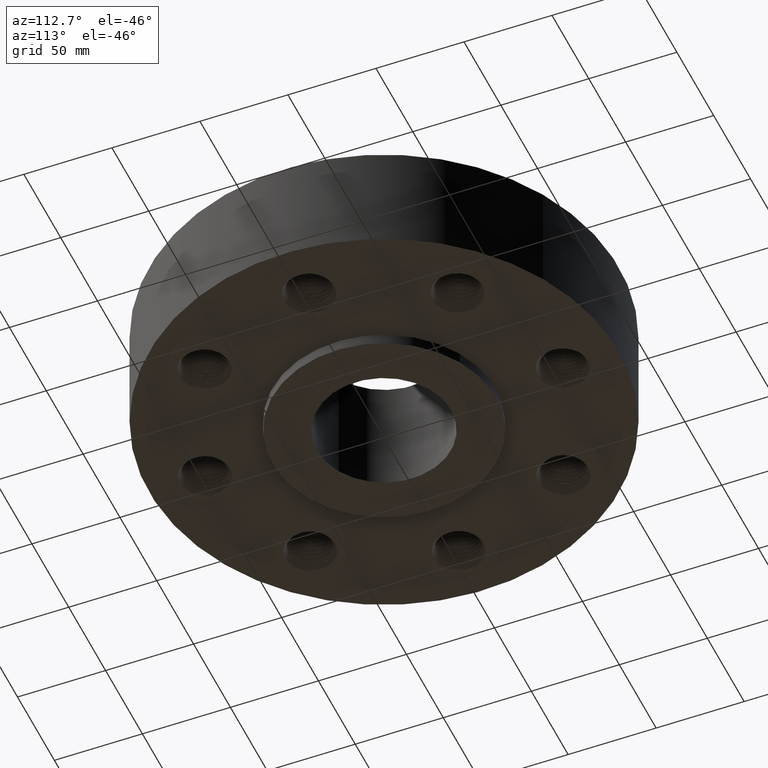
[diagram: clean part render]
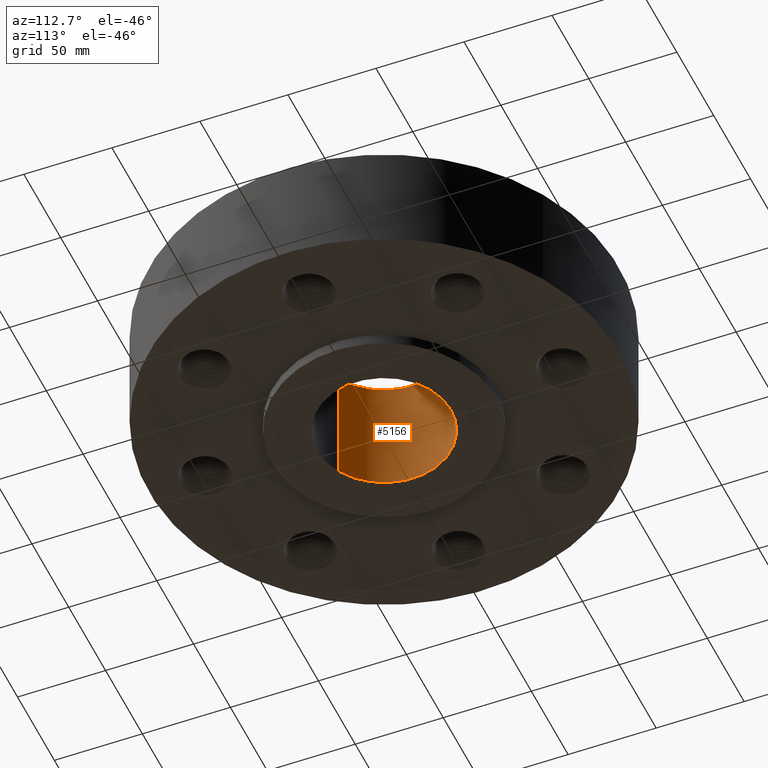
[diagram: same view with one face highlighted and labeled with its STEP entity id]
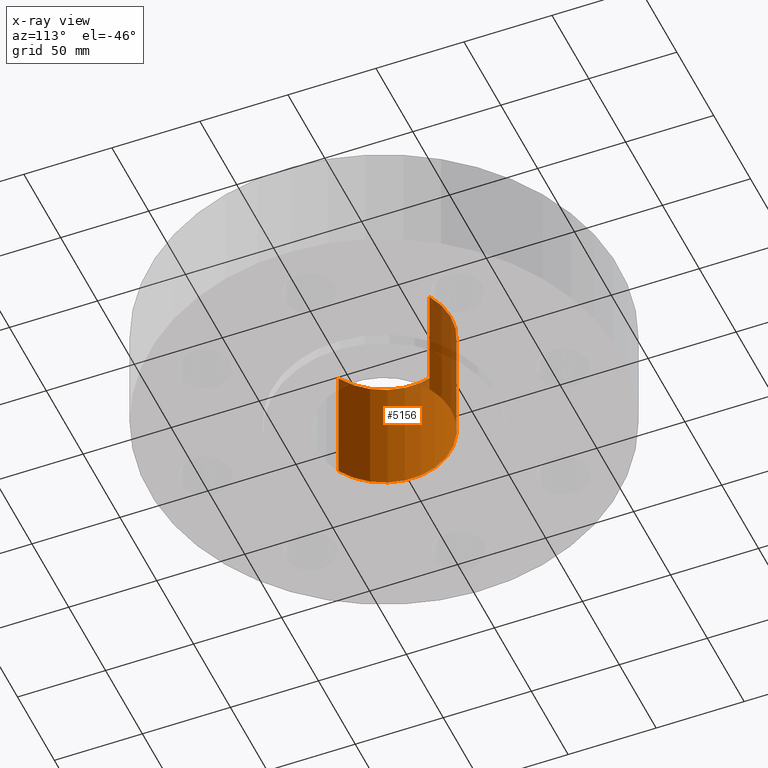
[diagram: x-ray of the same camera — body ghosted, the highlighted face saturated]
A machine part, auxiliary view. The second image highlights one B-rep face of the part: STEP entity #5156.
The next image is the same camera in x-ray: the body ghosted, the highlighted face saturated — about 12% of this face is hidden behind the body in this view.
In plain terms, the highlighted cylindrical surface (partial cylindrical patch) has radius 38.1 mm, axis along (0, 0, -1).
Its self-contained STEP definition (entity closure, byte-faithful):
#5106=AXIS2_PLACEMENT_3D('Circle Axis2P3D',#5104,#5105,$) ;
#5117=AXIS2_PLACEMENT_3D('Cylinder Axis2P3D',#5114,#5115,#5116) ;
#5147=AXIS2_PLACEMENT_3D('Circle Axis2P3D',#5145,#5146,$) ;
#5099=CARTESIAN_POINT('Vertex',(0.719138307909,1.31637384284,-0.250000000001)) ;
#5101=CARTESIAN_POINT('Vertex',(-0.719138307909,-1.31637384284,-0.250000000001)) ;
#5104=CARTESIAN_POINT('Axis2P3D Location',(0.,0.,-0.250000000001)) ;
#5114=CARTESIAN_POINT('Axis2P3D Location',(0.,0.,1.125)) ;
#5123=CARTESIAN_POINT('Vertex',(0.719138307909,1.31637384284,2.50000000001)) ;
#5125=CARTESIAN_POINT('Vertex',(-0.719138307909,-1.31637384284,2.50000000001)) ;
#5128=CARTESIAN_POINT('Line Origine',(0.719138307909,1.31637384284,1.125)) ;
#5133=CARTESIAN_POINT('Line Origine',(-0.719138307909,-1.31637384284,1.125)) ;
#5145=CARTESIAN_POINT('Axis2P3D Location',(0.,0.,2.50000000001)) ;
#5105=DIRECTION('Axis2P3D Direction',(0.,0.,-0.0393700787402)) ;
#5115=DIRECTION('Axis2P3D Direction',(0.,0.,-0.0393700787402)) ;
#5116=DIRECTION('Axis2P3D XDirection',(-0.0188750212049,-0.0345504945626,0.)) ;
#5129=DIRECTION('Vector Direction',(0.,0.,-0.0393700787402)) ;
#5134=DIRECTION('Vector Direction',(0.,0.,-0.0393700787402)) ;
#5146=DIRECTION('Axis2P3D Direction',(0.,0.,-0.0393700787402)) ;
#5130=VECTOR('Line Direction',#5129,0.0393700787402) ;
#5135=VECTOR('Line Direction',#5134,0.0393700787402) ;
#5151=ORIENTED_EDGE('',*,*,#5149,.F.) ;
#5152=ORIENTED_EDGE('',*,*,#5137,.T.) ;
#5153=ORIENTED_EDGE('',*,*,#5108,.T.) ;
#5154=ORIENTED_EDGE('',*,*,#5132,.F.) ;
#5156=ADVANCED_FACE('PartBody',(#5155),#5118,.F.) ;
#5107=CIRCLE('generated circle',#5106,1.50000000001) ;
#5148=CIRCLE('generated circle',#5147,1.50000000001) ;
#5118=CYLINDRICAL_SURFACE('generated cylinder',#5117,1.50000000001) ;
#5108=EDGE_CURVE('',#5102,#5100,#5107,.T.) ;
#5132=EDGE_CURVE('',#5124,#5100,#5131,.T.) ;
#5137=EDGE_CURVE('',#5126,#5102,#5136,.T.) ;
#5149=EDGE_CURVE('',#5126,#5124,#5148,.T.) ;
#5150=EDGE_LOOP('',(#5151,#5152,#5153,#5154)) ;
#5155=FACE_OUTER_BOUND('',#5150,.T.) ;
#5131=LINE('Line',#5128,#5130) ;
#5136=LINE('Line',#5133,#5135) ;
#5100=VERTEX_POINT('',#5099) ;
#5102=VERTEX_POINT('',#5101) ;
#5124=VERTEX_POINT('',#5123) ;
#5126=VERTEX_POINT('',#5125) ;